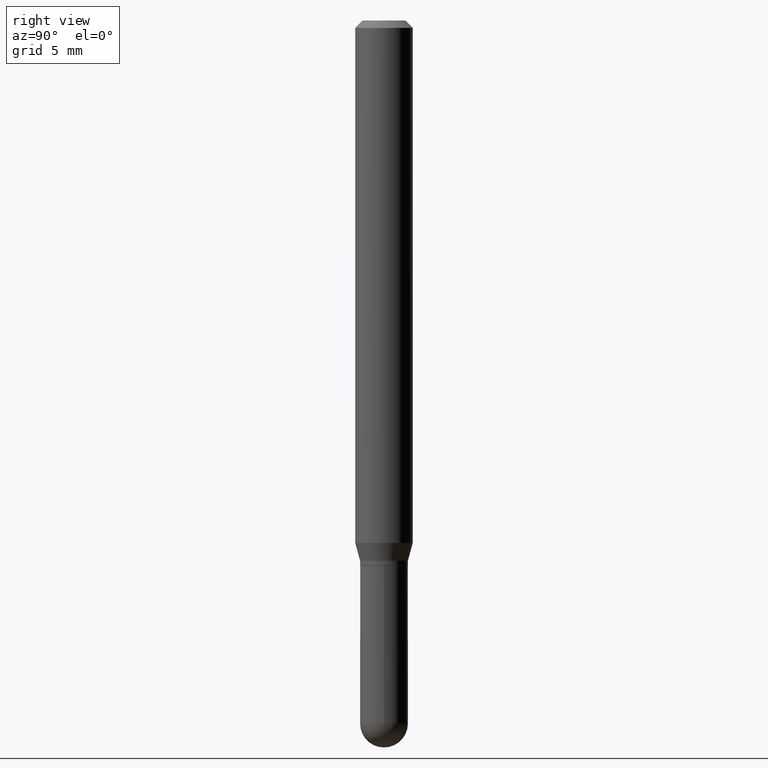
[diagram: clean part render]
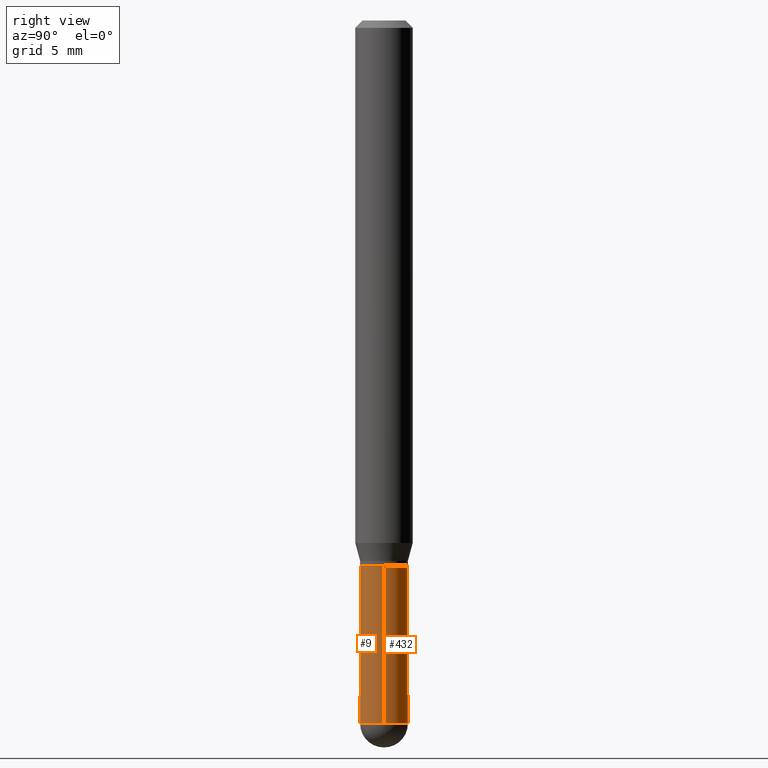
[diagram: same view with one multi-face feature highlighted, each face labeled with its STEP entity id]
A machine part, right view. The highlighted faces form ONE feature: a constant-radius fillet chain: 2 tangent blend faces with common blend radius 1.2497 mm. The faces share edges in the B-rep.
Their STEP definitions:
[1] entity #9 (Cylinder):
#9 = ADVANCED_FACE ( 'NONE', ( #453 ), #390, .T. ) ;
#12 = DIRECTION ( 'NONE',  ( -2.445468806185136597E-29, 3.491481338843145583E-15, 1.000000000000000000 ) ) ;
#20 = EDGE_CURVE ( 'NONE', #327, #224, #303, .T. ) ;
#24 = CIRCLE ( 'NONE', #394, 0.04920000000000000068 ) ;
#29 = VERTEX_POINT ( 'NONE', #145 ) ;
#42 = DIRECTION ( 'NONE',  ( -2.445468806185136597E-29, 3.491481338843145583E-15, 1.000000000000000000 ) ) ;
#58 = ORIENTED_EDGE ( 'NONE', *, *, #225, .T. ) ;
#64 = ORIENTED_EDGE ( 'NONE', *, *, #20, .F. ) ;
#82 = VERTEX_POINT ( 'NONE', #381 ) ;
#87 = LINE ( 'NONE', #169, #512 ) ;
#94 = CARTESIAN_POINT ( 'NONE',  ( 0.000000000000000000, 0.000000000000000000, 0.000000000000000000 ) ) ;
#126 = ORIENTED_EDGE ( 'NONE', *, *, #213, .T. ) ;
#138 = CARTESIAN_POINT ( 'NONE',  ( -0.04920000000000000068, -4.135220753750050718E-15, -1.122099999999999875 ) ) ;
#145 = CARTESIAN_POINT ( 'NONE',  ( 0.04920000000000000068, -4.261352974058057450E-15, -1.122099999999999875 ) ) ;
#146 = CIRCLE ( 'NONE', #161, 0.04920000000000000068 ) ;
#149 = CARTESIAN_POINT ( 'NONE',  ( 3.538348815669273817E-29, -5.051824349172146609E-15, -1.446899999999999853 ) ) ;
#161 = AXIS2_PLACEMENT_3D ( 'NONE', #372, #12, #164 ) ;
#163 = VERTEX_POINT ( 'NONE', #336 ) ;
#164 = DIRECTION ( 'NONE',  ( 1.000000000000000000, -6.982962677686261977E-15, 0.000000000000000000 ) ) ;
#169 = CARTESIAN_POINT ( 'NONE',  ( 0.04920000000000000068, -3.435617637421643269E-16, 2.399078973691600472E-30 ) ) ;
#213 = EDGE_CURVE ( 'NONE', #163, #82, #146, .T. ) ;
#224 = VERTEX_POINT ( 'NONE', #138 ) ;
#225 = EDGE_CURVE ( 'NONE', #82, #29, #87, .T. ) ;
#233 = AXIS2_PLACEMENT_3D ( 'NONE', #149, #436, #357 ) ;
#256 = DIRECTION ( 'NONE',  ( 1.000000000000000000, -6.982962677686266711E-15, 4.876176775795935793E-29 ) ) ;
#265 = CARTESIAN_POINT ( 'NONE',  ( -0.04920000000000000068, -4.135220753750050718E-15, -1.446899999999999853 ) ) ;
#272 = VECTOR ( 'NONE', #462, 39.37007874015748143 ) ;
#298 = DIRECTION ( 'NONE',  ( -2.445468806185136877E-29, 3.491481338843145188E-15, 1.000000000000000000 ) ) ;
#303 = LINE ( 'NONE', #428, #272 ) ;
#306 = ORIENTED_EDGE ( 'NONE', *, *, #344, .F. ) ;
#327 = VERTEX_POINT ( 'NONE', #265 ) ;
#330 = CIRCLE ( 'NONE', #233, 0.04920000000000000068 ) ;
#336 = CARTESIAN_POINT ( 'NONE',  ( -3.435617637421291240E-16, -0.04920000000000508689, -1.446899999999999631 ) ) ;
#344 = EDGE_CURVE ( 'NONE', #224, #29, #24, .T. ) ;
#357 = DIRECTION ( 'NONE',  ( 1.000000000000000000, -6.982962677686261977E-15, 0.000000000000000000 ) ) ;
#363 = CARTESIAN_POINT ( 'NONE',  ( 2.744060547420341208E-29, -3.917791210315892926E-15, -1.122099999999999875 ) ) ;
#366 = DIRECTION ( 'NONE',  ( 1.000000000000000000, -6.982962677686261977E-15, 0.000000000000000000 ) ) ;
#372 = CARTESIAN_POINT ( 'NONE',  ( 3.538348815669273817E-29, -5.051824349172146609E-15, -1.446899999999999853 ) ) ;
#375 = EDGE_LOOP ( 'NONE', ( #64, #389, #126, #58, #306 ) ) ;
#381 = CARTESIAN_POINT ( 'NONE',  ( 0.04920000000000000068, -4.828369543486183897E-15, -1.446899999999999853 ) ) ;
#389 = ORIENTED_EDGE ( 'NONE', *, *, #409, .T. ) ;
#390 = CYLINDRICAL_SURFACE ( 'NONE', #464, 0.04920000000000000068 ) ;
#394 = AXIS2_PLACEMENT_3D ( 'NONE', #363, #42, #366 ) ;
#409 = EDGE_CURVE ( 'NONE', #327, #163, #330, .T. ) ;
#420 = DIRECTION ( 'NONE',  ( -2.445468806185136597E-29, 3.491481338843145583E-15, 1.000000000000000000 ) ) ;
#428 = CARTESIAN_POINT ( 'NONE',  ( -0.04920000000000000068, 3.495870259939692963E-16, -2.420116064405413767E-30 ) ) ;
#436 = DIRECTION ( 'NONE',  ( -2.445468806185136597E-29, 3.491481338843145583E-15, 1.000000000000000000 ) ) ;
#453 = FACE_OUTER_BOUND ( 'NONE', #375, .T. ) ;
#462 = DIRECTION ( 'NONE',  ( -2.445468806185136877E-29, 3.491481338843145188E-15, 1.000000000000000000 ) ) ;
#464 = AXIS2_PLACEMENT_3D ( 'NONE', #94, #420, #256 ) ;
#512 = VECTOR ( 'NONE', #298, 39.37007874015748143 ) ;
[2] entity #432 (Cylinder):
#20 = EDGE_CURVE ( 'NONE', #327, #224, #303, .T. ) ;
#29 = VERTEX_POINT ( 'NONE', #145 ) ;
#31 = ORIENTED_EDGE ( 'NONE', *, *, #99, .T. ) ;
#55 = CARTESIAN_POINT ( 'NONE',  ( 3.538348815669273817E-29, -5.051824349172146609E-15, -1.446899999999999853 ) ) ;
#71 = CIRCLE ( 'NONE', #131, 0.04920000000000000068 ) ;
#82 = VERTEX_POINT ( 'NONE', #381 ) ;
#87 = LINE ( 'NONE', #169, #512 ) ;
#99 = EDGE_CURVE ( 'NONE', #82, #285, #331, .T. ) ;
#131 = AXIS2_PLACEMENT_3D ( 'NONE', #487, #302, #294 ) ;
#134 = CARTESIAN_POINT ( 'NONE',  ( 3.495870259940048443E-16, 0.04919999999999498386, -1.446900000000000075 ) ) ;
#138 = CARTESIAN_POINT ( 'NONE',  ( -0.04920000000000000068, -4.135220753750050718E-15, -1.122099999999999875 ) ) ;
#145 = CARTESIAN_POINT ( 'NONE',  ( 0.04920000000000000068, -4.261352974058057450E-15, -1.122099999999999875 ) ) ;
#157 = ORIENTED_EDGE ( 'NONE', *, *, #297, .T. ) ;
#169 = CARTESIAN_POINT ( 'NONE',  ( 0.04920000000000000068, -3.435617637421643269E-16, 2.399078973691600472E-30 ) ) ;
#170 = DIRECTION ( 'NONE',  ( 1.000000000000000000, -6.982962677686261977E-15, 0.000000000000000000 ) ) ;
#186 = DIRECTION ( 'NONE',  ( -2.445468806185136597E-29, 3.491481338843145583E-15, 1.000000000000000000 ) ) ;
#211 = DIRECTION ( 'NONE',  ( -2.445468806185136597E-29, 3.491481338843145583E-15, 1.000000000000000000 ) ) ;
#214 = ORIENTED_EDGE ( 'NONE', *, *, #225, .F. ) ;
#221 = ORIENTED_EDGE ( 'NONE', *, *, #474, .F. ) ;
#223 = DIRECTION ( 'NONE',  ( -2.445468806185136597E-29, 3.491481338843145583E-15, 1.000000000000000000 ) ) ;
#224 = VERTEX_POINT ( 'NONE', #138 ) ;
#225 = EDGE_CURVE ( 'NONE', #82, #29, #87, .T. ) ;
#251 = AXIS2_PLACEMENT_3D ( 'NONE', #472, #186, #352 ) ;
#255 = AXIS2_PLACEMENT_3D ( 'NONE', #55, #211, #170 ) ;
#265 = CARTESIAN_POINT ( 'NONE',  ( -0.04920000000000000068, -4.135220753750050718E-15, -1.446899999999999853 ) ) ;
#272 = VECTOR ( 'NONE', #462, 39.37007874015748143 ) ;
#285 = VERTEX_POINT ( 'NONE', #134 ) ;
#294 = DIRECTION ( 'NONE',  ( 1.000000000000000000, -6.982962677686261977E-15, 0.000000000000000000 ) ) ;
#297 = EDGE_CURVE ( 'NONE', #285, #327, #71, .T. ) ;
#298 = DIRECTION ( 'NONE',  ( -2.445468806185136877E-29, 3.491481338843145188E-15, 1.000000000000000000 ) ) ;
#302 = DIRECTION ( 'NONE',  ( -2.445468806185136597E-29, 3.491481338843145583E-15, 1.000000000000000000 ) ) ;
#303 = LINE ( 'NONE', #428, #272 ) ;
#314 = FACE_OUTER_BOUND ( 'NONE', #343, .T. ) ;
#327 = VERTEX_POINT ( 'NONE', #265 ) ;
#331 = CIRCLE ( 'NONE', #255, 0.04920000000000000068 ) ;
#332 = ORIENTED_EDGE ( 'NONE', *, *, #20, .T. ) ;
#342 = CIRCLE ( 'NONE', #368, 0.04920000000000000068 ) ;
#343 = EDGE_LOOP ( 'NONE', ( #157, #332, #221, #214, #31 ) ) ;
#350 = CYLINDRICAL_SURFACE ( 'NONE', #251, 0.04920000000000000068 ) ;
#352 = DIRECTION ( 'NONE',  ( 1.000000000000000000, -6.982962677686266711E-15, 4.876176775795935793E-29 ) ) ;
#368 = AXIS2_PLACEMENT_3D ( 'NONE', #469, #223, #398 ) ;
#381 = CARTESIAN_POINT ( 'NONE',  ( 0.04920000000000000068, -4.828369543486183897E-15, -1.446899999999999853 ) ) ;
#398 = DIRECTION ( 'NONE',  ( 1.000000000000000000, -6.982962677686261977E-15, 0.000000000000000000 ) ) ;
#428 = CARTESIAN_POINT ( 'NONE',  ( -0.04920000000000000068, 3.495870259939692963E-16, -2.420116064405413767E-30 ) ) ;
#432 = ADVANCED_FACE ( 'NONE', ( #314 ), #350, .T. ) ;
#462 = DIRECTION ( 'NONE',  ( -2.445468806185136877E-29, 3.491481338843145188E-15, 1.000000000000000000 ) ) ;
#469 = CARTESIAN_POINT ( 'NONE',  ( 2.744060547420341208E-29, -3.917791210315892926E-15, -1.122099999999999875 ) ) ;
#472 = CARTESIAN_POINT ( 'NONE',  ( 0.000000000000000000, 0.000000000000000000, 0.000000000000000000 ) ) ;
#474 = EDGE_CURVE ( 'NONE', #29, #224, #342, .T. ) ;
#487 = CARTESIAN_POINT ( 'NONE',  ( 3.538348815669273817E-29, -5.051824349172146609E-15, -1.446899999999999853 ) ) ;
#512 = VECTOR ( 'NONE', #298, 39.37007874015748143 ) ;